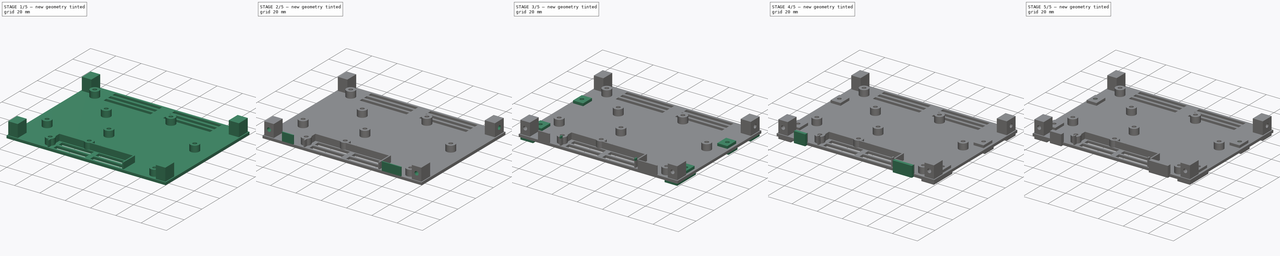
[diagram: build sequence overview — one tinted view per stage of 5, left to right]
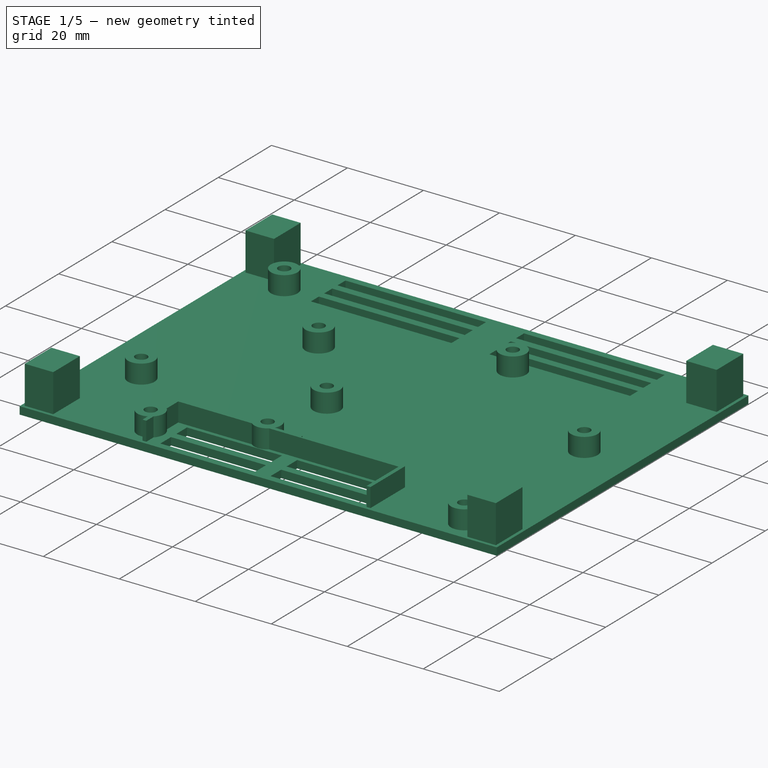
[diagram: stage 1 of 5 — iso view after this stage's code; geometry added in this stage tinted green]
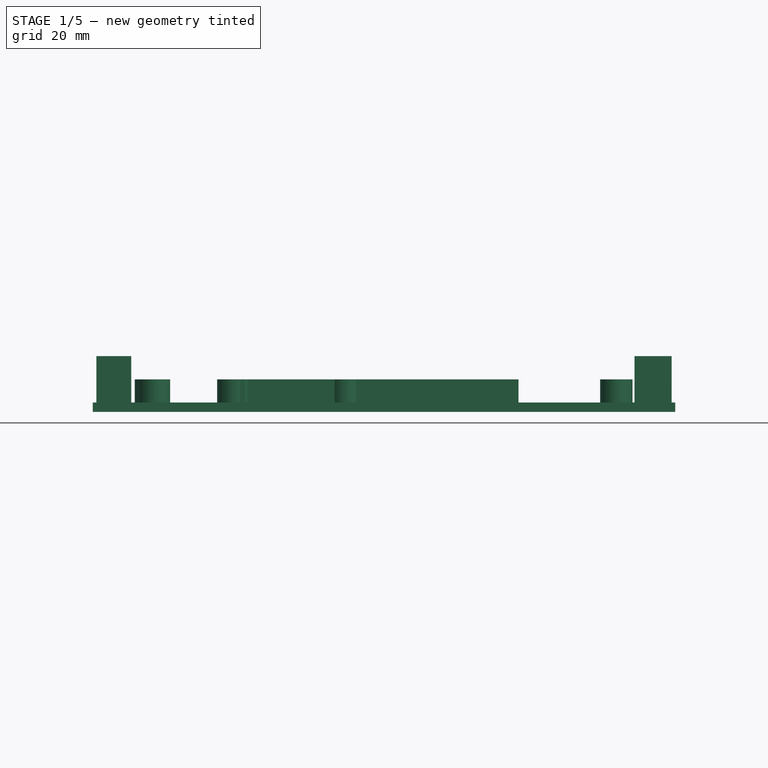
[diagram: stage 1 of 5 — front view after this stage's code; geometry added in this stage tinted green]
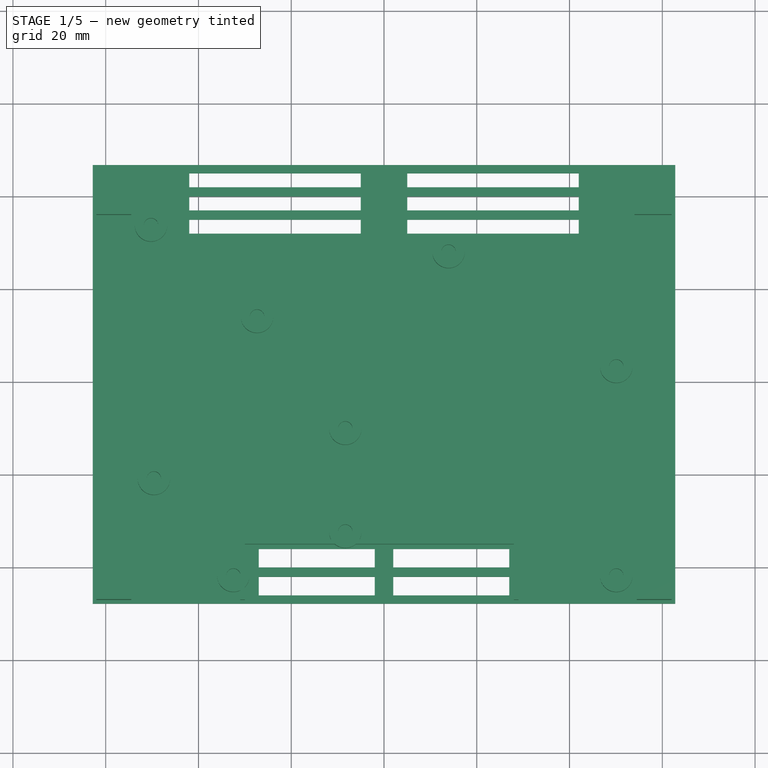
[diagram: stage 1 of 5 — top view after this stage's code; geometry added in this stage tinted green]
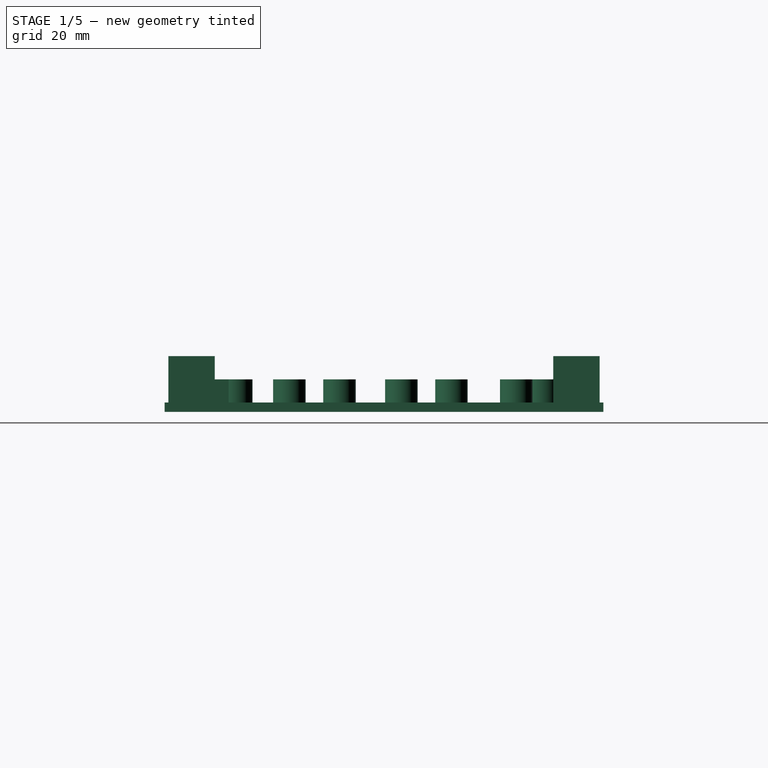
[diagram: stage 1 of 5 — right view after this stage's code; geometry added in this stage tinted green]
FCSTD DOCUMENT  (FreeCAD 0.19R24276 (Git))
Label: wall-sensor-of-room-temperature-bottom-part
License: All rights reserved
LicenseURL: http://en.wikipedia.org/wiki/All_rights_reserved
objects: Part::Feature×15, Sketcher::SketchObject×12, PartDesign::Pad×12, PartDesign::Hole×8, PartDesign::Body×1
note: 68 computed .brp shape members not serialized (recipe doc carries the construction recipe); baked Part::Feature solids carry a one-line shape summary decoded from their .brp

FEATURE [Part::Feature] Wire
  shape: bbox 2.921 x 11.81 x 2e-07 mm, 0 faces, 0 solids (baked)
FEATURE [Part::Feature] Wire001
  shape: bbox 2.9 x 28.3 x 2e-07 mm, 0 faces, 0 solids (baked)
FEATURE [Part::Feature] Wire002
  shape: bbox 107 x 90.03 x 2e-07 mm, 0 faces, 0 solids (baked)
FEATURE [Part::Feature] Wire003
  shape: bbox 30.97 x 2.9 x 2e-07 mm, 0 faces, 0 solids (baked)
FEATURE [Part::Feature] Wire004
  shape: bbox 2e-07 x 2.54 x 2e-07 mm, 0 faces, 0 solids (baked)
FEATURE [Part::Feature] Wire005 .. Wire011  x7 (patterned run collapsed; names and placements below)
  shape: bbox 2.2 x 2.2 x 2e-07 mm, 0 faces, 0 solids (baked)
FEATURE [Part::Feature] Wire012
  shape: bbox 3.81 x 2e-07 x 2e-07 mm, 0 faces, 0 solids (baked)
FEATURE [Part::Feature] Wire013
  shape: bbox 2.2 x 2.2 x 2e-07 mm, 0 faces, 0 solids (baked)
FEATURE [Part::Feature] Wire014
  shape: bbox 2.2 x 2.2 x 2e-07 mm, 0 faces, 0 solids (baked)
FEATURE [Sketcher::SketchObject] Sketch  label="vents"
  FullyConstrained = false
  MapMode = 5
  Support = -> [XY_Plane]
  sketch-geometry (44):
    g0: LineSegment StartX=-62.8 StartY=46.8 StartZ=0 EndX=62.8 EndY=46.8 EndZ=0
    g1: LineSegment StartX=62.8 StartY=46.8 StartZ=0 EndX=62.8 EndY=-47.8 EndZ=0
    g2: LineSegment StartX=-62.8 StartY=-47.8 StartZ=0 EndX=-62.8 EndY=46.8 EndZ=0
    g3: LineSegment StartX=-62.8 StartY=-47.8 StartZ=0 EndX=62.8 EndY=-47.8 EndZ=0
    g4: LineSegment StartX=-27 StartY=-36 StartZ=0 EndX=-2 EndY=-36 EndZ=0
    g5: LineSegment StartX=-2 StartY=-36 StartZ=0 EndX=-2 EndY=-40 EndZ=0
    g6: LineSegment StartX=-2 StartY=-40 StartZ=0 EndX=-27 EndY=-40 EndZ=0
    g7: LineSegment StartX=-27 StartY=-40 StartZ=0 EndX=-27 EndY=-36 EndZ=0
    g8: LineSegment StartX=-27 StartY=-42 StartZ=0 EndX=-2 EndY=-42 EndZ=0
    g9: LineSegment StartX=-2 StartY=-42 StartZ=0 EndX=-2 EndY=-46 EndZ=0
    g10: LineSegment StartX=-2 StartY=-46 StartZ=0 EndX=-27 EndY=-46 EndZ=0
    g11: LineSegment StartX=-27 StartY=-46 StartZ=0 EndX=-27 EndY=-42 EndZ=0
    g12: LineSegment StartX=2 StartY=-36 StartZ=0 EndX=27 EndY=-36 EndZ=0
    g13: LineSegment StartX=27 StartY=-36 StartZ=0 EndX=27 EndY=-40 EndZ=0
    g14: LineSegment StartX=27 StartY=-40 StartZ=0 EndX=2 EndY=-40 EndZ=0
    g15: LineSegment StartX=2 StartY=-40 StartZ=0 EndX=2 EndY=-36 EndZ=0
    g16: LineSegment StartX=2 StartY=-42 StartZ=0 EndX=27 EndY=-42 EndZ=0
    g17: LineSegment StartX=27 StartY=-42 StartZ=0 EndX=27 EndY=-46 EndZ=0
    g18: LineSegment StartX=27 StartY=-46 StartZ=0 EndX=2 EndY=-46 EndZ=0
    g19: LineSegment StartX=2 StartY=-46 StartZ=0 EndX=2 EndY=-42 EndZ=0
    g20: LineSegment StartX=-42 StartY=40 StartZ=0 EndX=-5 EndY=40 EndZ=0
    g21: LineSegment StartX=-5 StartY=40 StartZ=0 EndX=-5 EndY=37 EndZ=0
    g22: LineSegment StartX=-5 StartY=37 StartZ=0 EndX=-42 EndY=37 EndZ=0
    g23: LineSegment StartX=-42 StartY=37 StartZ=0 EndX=-42 EndY=40 EndZ=0
    g24: LineSegment StartX=-42 StartY=35 StartZ=0 EndX=-5 EndY=35 EndZ=0
    g25: LineSegment StartX=-5 StartY=35 StartZ=0 EndX=-5 EndY=32 EndZ=0
    g26: LineSegment StartX=-5 StartY=32 StartZ=0 EndX=-42 EndY=32 EndZ=0
    g27: LineSegment StartX=-42 StartY=32 StartZ=0 EndX=-42 EndY=35 EndZ=0
    g28: LineSegment StartX=5 StartY=40 StartZ=0 EndX=42 EndY=40 EndZ=0
    g29: LineSegment StartX=42 StartY=40 StartZ=0 EndX=42 EndY=37 EndZ=0
    g30: LineSegment StartX=42 StartY=37 StartZ=0 EndX=5 EndY=37 EndZ=0
    g31: LineSegment StartX=5 StartY=37 StartZ=0 EndX=5 EndY=40 EndZ=0
    g32: LineSegment StartX=5 StartY=35 StartZ=0 EndX=42 EndY=35 EndZ=0
    g33: LineSegment StartX=42 StartY=35 StartZ=0 EndX=42 EndY=32 EndZ=0
    g34: LineSegment StartX=42 StartY=32 StartZ=0 EndX=5 EndY=32 EndZ=0
    g35: LineSegment StartX=5 StartY=32 StartZ=0 EndX=5 EndY=35 EndZ=0
    g36: LineSegment StartX=-42 StartY=45 StartZ=0 EndX=-5 EndY=45 EndZ=0
    g37: LineSegment StartX=-5 StartY=45 StartZ=0 EndX=-5 EndY=42 EndZ=0
    g38: LineSegment StartX=-5 StartY=42 StartZ=0 EndX=-42 EndY=42 EndZ=0
    g39: LineSegment StartX=-42 StartY=42 StartZ=0 EndX=-42 EndY=45 EndZ=0
    g40: LineSegment StartX=5 StartY=45 StartZ=0 EndX=42 EndY=45 EndZ=0
    g41: LineSegment StartX=42 StartY=45 StartZ=0 EndX=42 EndY=42 EndZ=0
    g42: LineSegment StartX=42 StartY=42 StartZ=0 EndX=5 EndY=42 EndZ=0
    g43: LineSegment StartX=5 StartY=42 StartZ=0 EndX=5 EndY=45 EndZ=0
  constraints (92):
    c: Coincident(g0,g1)
    c: Coincident(g2,g0)
    c: Horizontal(g0)
    c: Vertical(g1)
    c: Vertical(g2)
    c: Coincident(g3,g2)
    c: Coincident(g3,g1)
    c: Horizontal(g3)
    c: DistanceX(g-1,g0) = 62.8
    c: DistanceY(g-1,g0) = 46.8
    c: Coincident(g4,g5)
    c: Coincident(g5,g6)
    c: Coincident(g7,g4)
    c: Horizontal(g4)
    c: Horizontal(g6)
    c: Vertical(g5)
    c: Vertical(g7)
    c: Coincident(g8,g9)
    c: Coincident(g9,g10)
    c: Coincident(g10,g11)
    c: Coincident(g11,g8)
    c: Horizontal(g8)
    c: Horizontal(g10)
    c: Vertical(g9)
    c: Vertical(g11)
    c: Coincident(g12,g13)
    c: Coincident(g13,g14)
    c: Coincident(g14,g15)
    c: Coincident(g15,g12)
    c: Horizontal(g12)
    c: Horizontal(g14)
    c: Vertical(g13)
    c: Vertical(g15)
    c: Coincident(g16,g17)
    c: Coincident(g17,g18)
    c: Coincident(g18,g19)
    c: Coincident(g19,g16)
    c: Horizontal(g16)
    c: Horizontal(g18)
    c: Vertical(g17)
    c: Vertical(g19)
    c: DistanceX(g0,g-1) = 62.8
    c: DistanceY(g2,g-1) = 47.8
    c: Coincident(g20,g21)
    c: Coincident(g21,g22)
    c: Coincident(g22,g23)
    c: Coincident(g23,g20)
    c: Horizontal(g20)
    c: Horizontal(g22)
    c: Vertical(g21)
    c: Vertical(g23)
    c: Coincident(g24,g25)
    c: Coincident(g25,g26)
    c: Coincident(g26,g27)
    c: Coincident(g27,g24)
    c: Horizontal(g24)
    c: Horizontal(g26)
    c: Vertical(g25)
    c: Vertical(g27)
    c: Coincident(g28,g29)
    c: Coincident(g29,g30)
    c: Coincident(g30,g31)
    c: Coincident(g31,g28)
    c: Horizontal(g28)
    c: Horizontal(g30)
    c: Vertical(g29)
    c: Vertical(g31)
    c: Coincident(g32,g33)
    c: Coincident(g33,g34)
    c: Coincident(g34,g35)
    c: Coincident(g35,g32)
    c: Horizontal(g32)
    c: Horizontal(g34)
    c: Vertical(g33)
    c: Vertical(g35)
    c: Coincident(g36,g37)
    c: Coincident(g37,g38)
    c: Coincident(g38,g39)
    c: Coincident(g39,g36)
    c: Horizontal(g36)
    c: Horizontal(g38)
    c: Vertical(g37)
    c: Vertical(g39)
    c: Coincident(g40,g41)
    c: Coincident(g41,g42)
    c: Coincident(g42,g43)
    c: Coincident(g43,g40)
    c: Horizontal(g40)
    c: Horizontal(g42)
    c: Vertical(g41)
    c: Vertical(g43)
    c: DistanceX(g4,g12) = 4
FEATURE [PartDesign::Pad] Pad
  Direction = (1,1,1)
  Length = 2
  Length2 = 0
  Offset = 18
  Profile = -> Sketch
  Reversed = true
  Type = 0
FEATURE [Sketcher::SketchObject] Sketch002  label="distance_columns"
  FullyConstrained = false
  MapMode = 5
  Support = -> [XY_Plane]
  sketch-geometry (26):
    g0: Circle CenterX=-49.6094 CenterY=-20.8974 CenterZ=0 NormalX=0 NormalY=0 NormalZ=1 AngleXU=0 Radius=1.55
    g1: Circle CenterX=-49.6094 CenterY=-20.8974 CenterZ=0 NormalX=0 NormalY=0 NormalZ=1 AngleXU=0 Radius=3.5
    g2: Circle CenterX=-8.34078 CenterY=-10.0935 CenterZ=0 NormalX=0 NormalY=0 NormalZ=1 AngleXU=0 Radius=1.55
    g3: Circle CenterX=-8.34078 CenterY=-10.0935 CenterZ=0 NormalX=0 NormalY=0 NormalZ=1 AngleXU=0 Radius=3.5
    g4: Circle CenterX=-27.3676 CenterY=14.0367 CenterZ=0 NormalX=0 NormalY=0 NormalZ=1 AngleXU=0 Radius=1.55
    g5: Circle CenterX=-27.3676 CenterY=14.0367 CenterZ=0 NormalX=0 NormalY=0 NormalZ=1 AngleXU=0 Radius=3.5
    g6: Circle CenterX=-50.2294 CenterY=33.738 CenterZ=0 NormalX=0 NormalY=0 NormalZ=1 AngleXU=0 Radius=1.55
    g7: Circle CenterX=-50.2294 CenterY=33.738 CenterZ=0 NormalX=0 NormalY=0 NormalZ=1 AngleXU=0 Radius=3.5
    g8: Circle CenterX=13.9237 CenterY=28.0157 CenterZ=0 NormalX=0 NormalY=0 NormalZ=1 AngleXU=0 Radius=1.55
    g9: Circle CenterX=13.9237 CenterY=28.0157 CenterZ=0 NormalX=0 NormalY=0 NormalZ=1 AngleXU=0 Radius=3.5
    g10: Circle CenterX=50.086 CenterY=-41.8361 CenterZ=0 NormalX=0 NormalY=0 NormalZ=1 AngleXU=0 Radius=1.55
    g11: Circle CenterX=50.086 CenterY=-41.8361 CenterZ=0 NormalX=0 NormalY=0 NormalZ=1 AngleXU=0 Radius=3.5
    g12: Circle CenterX=50.0899 CenterY=3.25085 CenterZ=0 NormalX=0 NormalY=0 NormalZ=1 AngleXU=0 Radius=1.55
    g13: Circle CenterX=50.0899 CenterY=3.25085 CenterZ=0 NormalX=0 NormalY=0 NormalZ=1 AngleXU=0 Radius=3.5
    g14: LineSegment StartX=-31 StartY=-47 StartZ=0 EndX=-31 EndY=-34 EndZ=0
    g15: LineSegment StartX=-31 StartY=-34 StartZ=0 EndX=2 EndY=-34 EndZ=0
    g16: LineSegment StartX=29 StartY=-34 StartZ=0 EndX=29 EndY=-47 EndZ=0
    g17: LineSegment StartX=29 StartY=-47 StartZ=0 EndX=28 EndY=-47 EndZ=0
    g18: LineSegment StartX=28 StartY=-47 StartZ=0 EndX=28 EndY=-35 EndZ=0
    g19: LineSegment StartX=28 StartY=-35 StartZ=0 EndX=-30 EndY=-35 EndZ=0
    g20: LineSegment StartX=-31 StartY=-47 StartZ=0 EndX=-30 EndY=-47 EndZ=0
    g21: LineSegment StartX=-30 StartY=-47 StartZ=0 EndX=-30 EndY=-35 EndZ=0
    g22: LineSegment StartX=2 StartY=-34 StartZ=0 EndX=2 EndY=-34.5 EndZ=0
    g23: LineSegment StartX=2 StartY=-34.5 StartZ=0 EndX=10 EndY=-34.5 EndZ=0
    g24: LineSegment StartX=10 StartY=-34 StartZ=0 EndX=10 EndY=-34.5 EndZ=0
    g25: LineSegment StartX=10 StartY=-34 StartZ=0 EndX=29 EndY=-34 EndZ=0
  constraints (45):
    c: Coincident(g1,g0)
    c: Coincident(g3,g2)
    c: Coincident(g5,g4)
    c: Coincident(g7,g6)
    c: Coincident(g9,g8)
    c: Coincident(g11,g10)
    c: Coincident(g13,g12)
    c: Vertical(g14)
    c: Coincident(g15,g14)
    c: Horizontal(g15)
    c: Vertical(g16)
    c: Coincident(g17,g16)
    c: Horizontal(g17)
    c: Coincident(g18,g17)
    c: Vertical(g18)
    c: Coincident(g19,g18)
    c: Horizontal(g19)
    c: Coincident(g20,g14)
    c: Horizontal(g20)
    c: Coincident(g21,g20)
    c: Coincident(g21,g19)
    c: Vertical(g21)
    c: Coincident(g22,g15)
    c: Vertical(g22)
    c: Coincident(g23,g22)
    c: Horizontal(g23)
    c: Coincident(g24,g23)
    c: Vertical(g24)
    c: Coincident(g25,g24)
    c: Coincident(g25,g16)
    c: Horizontal(g25)
    c: Diameter(g4) = 3.1
    c: Diameter(g5) = 7
    c: Diameter(g6) = 3.1
    c: Diameter(g7) = 7
    c: Diameter(g8) = 3.1
    c: Diameter(g9) = 7
    c: Diameter(g12) = 3.1
    c: Diameter(g13) = 7
    c: Diameter(g0) = 3.1
    c: Diameter(g1) = 7
    c: Diameter(g10) = 3.1
    c: Diameter(g11) = 7
    c: Diameter(g2) = 3.1
    c: Diameter(g3) = 7
FEATURE [Sketcher::SketchObject] Sketch003  label="mouting_upper_part"
  FullyConstrained = false
  MapMode = 5
  Support = -> [XY_Plane]
  sketch-geometry (16):
    g0: LineSegment StartX=-62 StartY=46 StartZ=0 EndX=-62 EndY=36 EndZ=0
    g1: LineSegment StartX=-62 StartY=36 StartZ=0 EndX=-54.5 EndY=36 EndZ=0
    g2: LineSegment StartX=-54.5 StartY=36 StartZ=0 EndX=-54.5 EndY=46 EndZ=0
    g3: LineSegment StartX=-62 StartY=-47 StartZ=0 EndX=-62 EndY=-37 EndZ=0
    g4: LineSegment StartX=-62 StartY=-37 StartZ=0 EndX=-54.5 EndY=-37 EndZ=0
    g5: LineSegment StartX=-62 StartY=-47 StartZ=0 EndX=-54.5 EndY=-47 EndZ=0
    g6: LineSegment StartX=62 StartY=46 StartZ=0 EndX=62 EndY=36 EndZ=0
    g7: LineSegment StartX=62 StartY=46 StartZ=0 EndX=54 EndY=46 EndZ=0
    g8: LineSegment StartX=62 StartY=-47 StartZ=0 EndX=54.5 EndY=-47 EndZ=0
    g9: LineSegment StartX=54.5 StartY=-37 StartZ=0 EndX=62 EndY=-37 EndZ=0
    g10: LineSegment StartX=62 StartY=-37 StartZ=0 EndX=62 EndY=-47 EndZ=0
    g11: LineSegment StartX=54.5 StartY=-37 StartZ=0 EndX=54.5 EndY=-47 EndZ=0
    g12: LineSegment StartX=54 StartY=46 StartZ=0 EndX=54 EndY=36 EndZ=0
    g13: LineSegment StartX=54 StartY=36 StartZ=0 EndX=62 EndY=36 EndZ=0
    g14: LineSegment StartX=-54.5 StartY=-37 StartZ=0 EndX=-54.5 EndY=-47 EndZ=0
    g15: LineSegment StartX=-54.5 StartY=46 StartZ=0 EndX=-62 EndY=46 EndZ=0
  constraints (24):
    c: Vertical(g0)
    c: Coincident(g1,g0)
    c: Horizontal(g1)
    c: Coincident(g2,g1)
    c: Vertical(g2)
    c: Vertical(g3)
    c: Coincident(g4,g3)
    c: Horizontal(g4)
    c: Coincident(g5,g3)
    c: Horizontal(g5)
    c: Vertical(g6)
    c: Coincident(g7,g6)
    c: Horizontal(g7)
    c: Horizontal(g8)
    c: Horizontal(g9)
    c: Vertical(g10)
    c: Coincident(g11,g9)
    c: Vertical(g11)
    c: Vertical(g12)
    c: Coincident(g13,g12)
    c: Coincident(g14,g4)
    c: Vertical(g14)
    c: Coincident(g15,g2)
    c: Horizontal(g15)
FEATURE [PartDesign::Pad] Pad003
  BaseFeature = -> Pad
  Direction = (1,1,1)
  Length = 5
  Length2 = 100
  Profile = -> Sketch002
  Type = 0
FEATURE [Sketcher::SketchObject] Sketch004  label="distance_columns_temp_sensor"
  FullyConstrained = false
  MapMode = 5
  Support = -> [XY_Plane]
  sketch-geometry (4):
    g0: Circle CenterX=-32.4748 CenterY=-41.8224 CenterZ=0 NormalX=0 NormalY=0 NormalZ=1 AngleXU=0 Radius=1.55
    g1: Circle CenterX=-32.4748 CenterY=-41.8224 CenterZ=0 NormalX=0 NormalY=0 NormalZ=1 AngleXU=0 Radius=3.5
    g2: Circle CenterX=-8.33691 CenterY=-32.3371 CenterZ=0 NormalX=0 NormalY=0 NormalZ=1 AngleXU=0 Radius=1.55
    g3: Circle CenterX=-8.33691 CenterY=-32.3371 CenterZ=0 NormalX=0 NormalY=0 NormalZ=1 AngleXU=0 Radius=3.5
  constraints (6):
    c: Diameter(g0) = 3.1
    c: Coincident(g1,g0)
    c: Diameter(g1) = 7
    c: Diameter(g2) = 3.1
    c: Coincident(g3,g2)
    c: Diameter(g3) = 7
FEATURE [PartDesign::Pad] Pad004
  BaseFeature = -> Pad003
  Direction = (1,1,1)
  Length = 5
  Length2 = 100
  Profile = -> Sketch004
  Type = 0
FEATURE [Sketcher::SketchObject] Sketch010  label="mounting_holes"
  FullyConstrained = false
  MapMode = 5
  Support = -> [XY_Plane]
  sketch-geometry (20):
    g0: LineSegment StartX=-61 StartY=21 StartZ=0 EndX=-53 EndY=21 EndZ=0
    g1: LineSegment StartX=-53 StartY=21 StartZ=0 EndX=-53 EndY=11 EndZ=0
    g2: LineSegment StartX=-53 StartY=11 StartZ=0 EndX=-61 EndY=11 EndZ=0
    g3: LineSegment StartX=-61 StartY=11 StartZ=0 EndX=-61 EndY=21 EndZ=0
    g4: LineSegment StartX=53 StartY=21 StartZ=0 EndX=61 EndY=21 EndZ=0
    g5: LineSegment StartX=61 StartY=21 StartZ=0 EndX=61 EndY=11 EndZ=0
    g6: LineSegment StartX=61 StartY=11 StartZ=0 EndX=53 EndY=11 EndZ=0
    g7: LineSegment StartX=53 StartY=11 StartZ=0 EndX=53 EndY=21 EndZ=0
    g8: Circle CenterX=-57.5 CenterY=16 CenterZ=0 NormalX=0 NormalY=0 NormalZ=1 AngleXU=0 Radius=1.5
    g9: Circle CenterX=57.5 CenterY=16 CenterZ=0 NormalX=0 NormalY=0 NormalZ=1 AngleXU=0 Radius=1.5
    g10: LineSegment StartX=-61 StartY=-26 StartZ=0 EndX=-53 EndY=-26 EndZ=0
    g11: LineSegment StartX=-53 StartY=-26 StartZ=0 EndX=-53 EndY=-36 EndZ=0
    g12: LineSegment StartX=-53 StartY=-36 StartZ=0 EndX=-61 EndY=-36 EndZ=0
    g13: LineSegment StartX=-61 StartY=-36 StartZ=0 EndX=-61 EndY=-26 EndZ=0
    g14: LineSegment StartX=53 StartY=-26 StartZ=0 EndX=61 EndY=-26 EndZ=0
    g15: LineSegment StartX=61 StartY=-26 StartZ=0 EndX=61 EndY=-36 EndZ=0
    g16: LineSegment StartX=61 StartY=-36 StartZ=0 EndX=53 EndY=-36 EndZ=0
    g17: LineSegment StartX=53 StartY=-36 StartZ=0 EndX=53 EndY=-26 EndZ=0
    g18: Circle CenterX=-57.5 CenterY=-31 CenterZ=0 NormalX=0 NormalY=0 NormalZ=1 AngleXU=0 Radius=1.55
    g19: Circle CenterX=57.5 CenterY=-31 CenterZ=0 NormalX=0 NormalY=0 NormalZ=1 AngleXU=0 Radius=1.55
  constraints (36):
    c: Coincident(g0,g1)
    c: Coincident(g1,g2)
    c: Coincident(g2,g3)
    c: Coincident(g3,g0)
    c: Horizontal(g0)
    c: Horizontal(g2)
    c: Vertical(g1)
    c: Vertical(g3)
    c: Coincident(g4,g5)
    c: Coincident(g5,g6)
    c: Coincident(g6,g7)
    c: Coincident(g7,g4)
    c: Horizontal(g4)
    c: Horizontal(g6)
    c: Vertical(g5)
    c: Vertical(g7)
    c: Diameter(g8) = 3
    c: Diameter(g9) = 3
    c: Coincident(g10,g11)
    c: Coincident(g11,g12)
    c: Coincident(g12,g13)
    c: Coincident(g13,g10)
    c: Horizontal(g10)
    c: Horizontal(g12)
    c: Vertical(g11)
    c: Vertical(g13)
    c: Coincident(g14,g15)
    c: Coincident(g15,g16)
    c: Coincident(g16,g17)
    c: Coincident(g17,g14)
    c: Horizontal(g14)
    c: Horizontal(g16)
    c: Vertical(g15)
    c: Vertical(g17)
    c: Diameter(g18) = 3.1
    c: Diameter(g19) = 3.1
FEATURE [Sketcher::SketchObject] Sketch011  label="distance_pads"
  FullyConstrained = false
  MapMode = 5
  Placement = pos=(0,0,-2) rot=(1,0,0;3.14159rad)
  sketch-geometry (46):
    g0: LineSegment StartX=-62 StartY=47 StartZ=0 EndX=-52 EndY=47 EndZ=0
    g1: LineSegment StartX=-52 StartY=47 StartZ=0 EndX=-52 EndY=37 EndZ=0
    g2: LineSegment StartX=-62 StartY=37 StartZ=0 EndX=-62 EndY=47 EndZ=0
    g3: LineSegment StartX=62 StartY=47 StartZ=0 EndX=52 EndY=47 EndZ=0
    g4: LineSegment StartX=52 StartY=47 StartZ=0 EndX=52 EndY=37 EndZ=0
    g5: LineSegment StartX=62 StartY=37 StartZ=0 EndX=62 EndY=47 EndZ=0
    g6: LineSegment StartX=62 StartY=-46 StartZ=0 EndX=52 EndY=-46 EndZ=0
    g7: LineSegment StartX=52 StartY=-46 StartZ=0 EndX=52 EndY=-36 EndZ=0
    g8: LineSegment StartX=52 StartY=-36 StartZ=0 EndX=62 EndY=-36 EndZ=0
    g9: LineSegment StartX=62 StartY=-36 StartZ=0 EndX=62 EndY=-46 EndZ=0
    g10: LineSegment StartX=-62 StartY=-46 StartZ=0 EndX=-52 EndY=-46 EndZ=0
    g11: LineSegment StartX=-52 StartY=-46 StartZ=0 EndX=-52 EndY=-36 EndZ=0
    g12: LineSegment StartX=-52 StartY=-36 StartZ=0 EndX=-62 EndY=-36 EndZ=0
    g13: LineSegment StartX=-62 StartY=-36 StartZ=0 EndX=-62 EndY=-46 EndZ=0
    g14: LineSegment StartX=-62 StartY=-11 StartZ=0 EndX=-32 EndY=-11 EndZ=0
    g15: LineSegment StartX=-32 StartY=-11 StartZ=0 EndX=-32 EndY=-21 EndZ=0
    g16: LineSegment StartX=-32 StartY=-21 StartZ=0 EndX=-62 EndY=-21 EndZ=0
    g17: LineSegment StartX=-62 StartY=-21 StartZ=0 EndX=-62 EndY=-11 EndZ=0
    g18: LineSegment StartX=32 StartY=-11 StartZ=0 EndX=62 EndY=-11 EndZ=0
    g19: LineSegment StartX=62 StartY=-11 StartZ=0 EndX=62 EndY=-21 EndZ=0
    g20: LineSegment StartX=62 StartY=-21 StartZ=0 EndX=32 EndY=-21 EndZ=0
    g21: LineSegment StartX=32 StartY=-21 StartZ=0 EndX=32 EndY=-11 EndZ=0
    g22: LineSegment StartX=-10 StartY=26 StartZ=0 EndX=10 EndY=26 EndZ=0
    g23: LineSegment StartX=10 StartY=26 StartZ=0 EndX=10 EndY=-11 EndZ=0
    g24: LineSegment StartX=10 StartY=-11 StartZ=0 EndX=-10 EndY=-11 EndZ=0
    g25: LineSegment StartX=-10 StartY=-11 StartZ=0 EndX=-10 EndY=26 EndZ=0
    g26: LineSegment StartX=-37 StartY=36 StartZ=0 EndX=-37 EndY=26 EndZ=0
    g27: LineSegment StartX=-37 StartY=26 StartZ=0 EndX=-62 EndY=26 EndZ=0
    g28: LineSegment StartX=-62 StartY=26 StartZ=0 EndX=-62 EndY=36 EndZ=0
    g29: LineSegment StartX=62 StartY=36 StartZ=0 EndX=62 EndY=26 EndZ=0
    g30: LineSegment StartX=62 StartY=26 StartZ=0 EndX=37 EndY=26 EndZ=0
    g31: LineSegment StartX=37 StartY=26 StartZ=0 EndX=37 EndY=36 EndZ=0
    g32: LineSegment StartX=-37 StartY=36 StartZ=0 EndX=-52 EndY=36 EndZ=0
    g33: LineSegment StartX=-52 StartY=37 StartZ=0 EndX=-52 EndY=36 EndZ=0
    g34: LineSegment StartX=-62 StartY=37 StartZ=0 EndX=-62 EndY=36 EndZ=0
    g35: LineSegment StartX=37 StartY=36 StartZ=0 EndX=52 EndY=36 EndZ=0
    g36: LineSegment StartX=52 StartY=37 StartZ=0 EndX=52 EndY=36 EndZ=0
    g37: LineSegment StartX=62 StartY=37 StartZ=0 EndX=62 EndY=36 EndZ=0
    g38: LineSegment StartX=-47 StartY=12 StartZ=0 EndX=-37 EndY=12 EndZ=0
    g39: LineSegment StartX=-37 StartY=12 StartZ=0 EndX=-37 EndY=2 EndZ=0
    g40: LineSegment StartX=-37 StartY=2 StartZ=0 EndX=-47 EndY=2 EndZ=0
    g41: LineSegment StartX=-47 StartY=2 StartZ=0 EndX=-47 EndY=12 EndZ=0
    g42: LineSegment StartX=37 StartY=12 StartZ=0 EndX=47 EndY=12 EndZ=0
    g43: LineSegment StartX=47 StartY=12 StartZ=0 EndX=47 EndY=2 EndZ=0
    g44: LineSegment StartX=47 StartY=2 StartZ=0 EndX=37 EndY=2 EndZ=0
    g45: LineSegment StartX=37 StartY=2 StartZ=0 EndX=37 EndY=12 EndZ=0
  constraints (96):
    c: Coincident(g0,g1)
    c: Coincident(g2,g0)
    c: Horizontal(g0)
    c: Vertical(g1)
    c: Vertical(g2)
    c: Coincident(g3,g4)
    c: Coincident(g5,g3)
    c: Horizontal(g3)
    c: Vertical(g4)
    c: Vertical(g5)
    c: Coincident(g6,g7)
    c: Coincident(g7,g8)
    c: Coincident(g8,g9)
    c: Coincident(g9,g6)
    c: Horizontal(g6)
    c: Horizontal(g8)
    c: Vertical(g7)
    c: Vertical(g9)
    c: Coincident(g10,g11)
    c: Coincident(g11,g12)
    c: Coincident(g12,g13)
    c: Coincident(g13,g10)
    c: Horizontal(g10)
    c: Horizontal(g12)
    c: Vertical(g11)
    c: Vertical(g13)
    c: Coincident(g14,g15)
    c: Coincident(g15,g16)
    c: Coincident(g16,g17)
    c: Coincident(g17,g14)
    c: Horizontal(g14)
    c: Horizontal(g16)
    c: Vertical(g15)
    c: Vertical(g17)
    c: Coincident(g18,g19)
    c: Coincident(g19,g20)
    c: Coincident(g20,g21)
    c: Coincident(g21,g18)
    c: Horizontal(g18)
    c: Horizontal(g20)
    c: Vertical(g19)
    c: Vertical(g21)
    c: Coincident(g22,g23)
    c: Coincident(g23,g24)
    c: Coincident(g24,g25)
    c: Coincident(g25,g22)
    c: Horizontal(g22)
    c: Horizontal(g24)
    c: Vertical(g23)
    c: Vertical(g25)
    c: Coincident(g26,g27)
    c: Coincident(g27,g28)
    c: Horizontal(g27)
    c: Vertical(g26)
    c: Vertical(g28)
    c: Coincident(g29,g30)
    c: Coincident(g30,g31)
    c: Horizontal(g30)
    c: Vertical(g29)
    c: Vertical(g31)
    c: Coincident(g32,g26)
    c: Horizontal(g32)
    c: Coincident(g33,g1)
    c: Coincident(g33,g32)
    c: Vertical(g33)
    c: Coincident(g34,g2)
    c: Coincident(g34,g28)
    c: Vertical(g34)
    c: Coincident(g35,g31)
    c: Horizontal(g35)
    c: Coincident(g36,g4)
    c: Coincident(g36,g35)
    c: Vertical(g36)
    c: Coincident(g37,g5)
    c: Coincident(g37,g29)
    c: Vertical(g37)
    c: Coincident(g38,g39)
    c: Coincident(g39,g40)
    c: Coincident(g40,g41)
    c: Coincident(g41,g38)
    c: Horizontal(g38)
    c: Horizontal(g40)
    c: Vertical(g39)
    c: Vertical(g41)
    c: DistanceX(g38,g38) = 10
    c: DistanceY(g39,g39) = 10
    c: Coincident(g42,g43)
    c: Coincident(g43,g44)
    c: Coincident(g44,g45)
    c: Coincident(g45,g42)
    c: Horizontal(g42)
    c: Horizontal(g44)
    c: Vertical(g43)
    c: Vertical(g45)
    c: DistanceX(g42,g42) = 10
    c: DistanceY(g43,g43) = 10
FEATURE [PartDesign::Pad] Pad010
  BaseFeature = -> Pad004
  Direction = (1,1,1)
  Length = 10
  Length2 = 100
  Profile = -> Sketch003
  Type = 0
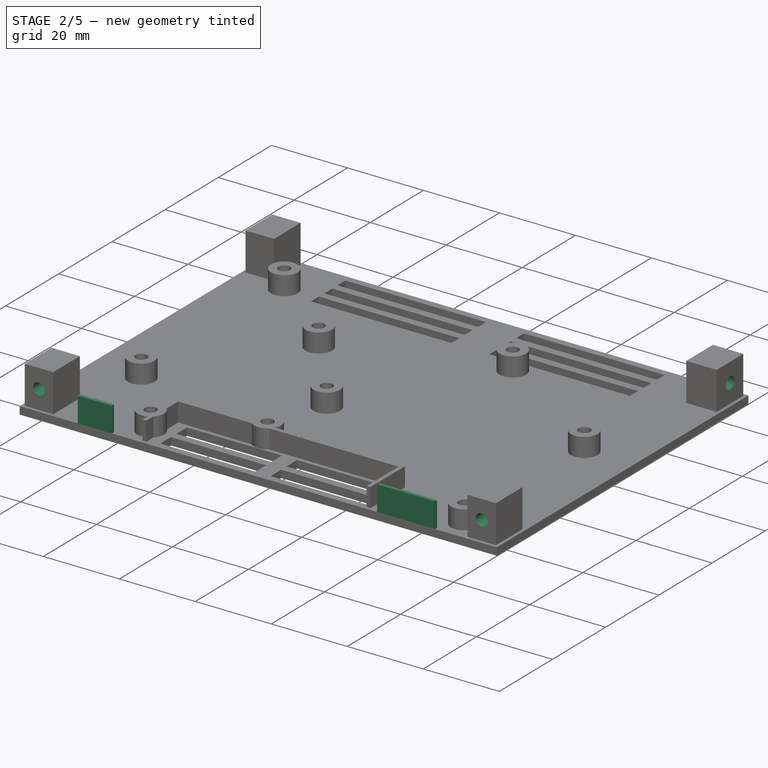
[diagram: stage 2 of 5 — iso view after this stage's code; geometry added in this stage tinted green]
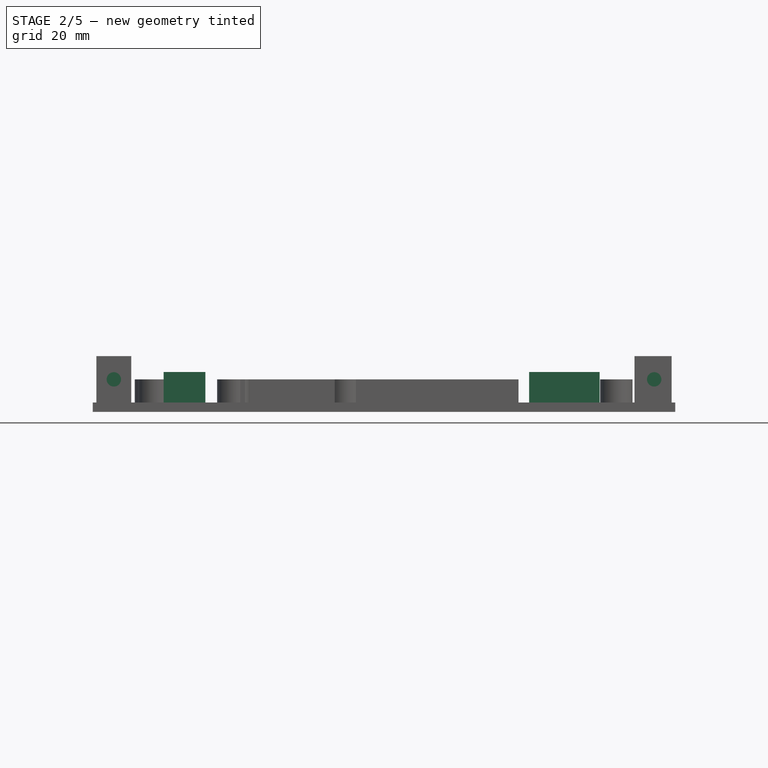
[diagram: stage 2 of 5 — front view after this stage's code; geometry added in this stage tinted green]
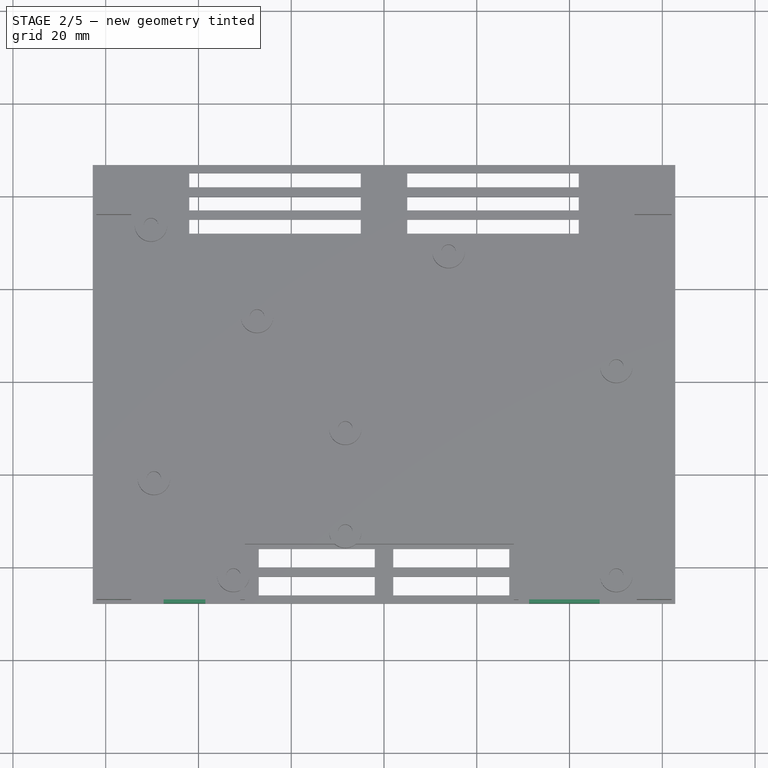
[diagram: stage 2 of 5 — top view after this stage's code; geometry added in this stage tinted green]
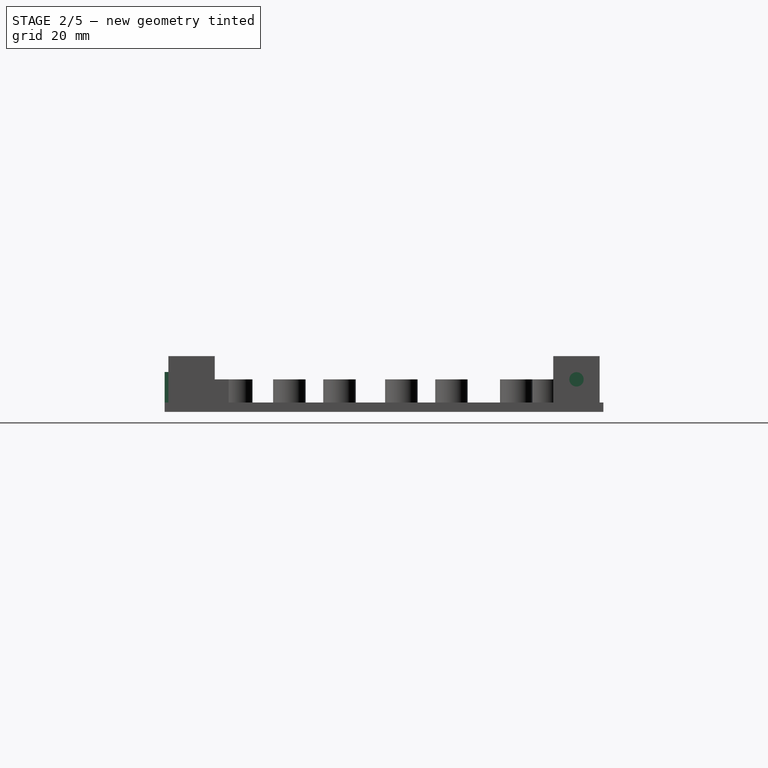
[diagram: stage 2 of 5 — right view after this stage's code; geometry added in this stage tinted green]
FEATURE [Sketcher::SketchObject] Sketch014  label="front_right"
  FullyConstrained = false
  MapMode = 5
  Placement = pos=(0,-47,0) rot=(1,0,0;1.5708rad)
  Support = -> [Pad010]
  sketch-geometry (1):
    g0: Circle CenterX=58.2514 CenterY=5 CenterZ=0 NormalX=0 NormalY=0 NormalZ=1 AngleXU=0 Radius=1.55
  constraints (1):
    c: Diameter(g0) = 3.1
FEATURE [PartDesign::Hole] Hole002
  BaseFeature = -> Pad010
  Depth = 6
  DepthType = 0
  Diameter = 3.1
  DrillForDepth = false
  DrillPoint = 0
  DrillPointAngle = 118
  HoleCutCountersinkAngle = 90
  HoleCutCustomValues = false
  HoleCutDepth = 0
  HoleCutDiameter = 6.1
  HoleCutType = 0
  ModelActualThread = false
  Profile = -> Sketch014
  Tapered = false
  TaperedAngle = 90
  ThreadAngle = 0
  ThreadClass = 0
  ThreadCutOffInner = 0
  ThreadCutOffOuter = 0
  ThreadDirection = 0
  ThreadFit = 0
  ThreadPitch = 0
  ThreadSize = 0
  ThreadType = 0
  Threaded = false
FEATURE [Sketcher::SketchObject] Sketch017  label="connectors_bottom"
  FullyConstrained = false
  MapMode = 5
  sketch-geometry (8):
    g0: LineSegment StartX=-47.5 StartY=-47.8 StartZ=0 EndX=-38.5 EndY=-47.8 EndZ=0
    g1: LineSegment StartX=-47.5 StartY=-47.8 StartZ=0 EndX=-47.5 EndY=-47 EndZ=0
    g2: LineSegment StartX=-47.5 StartY=-47 StartZ=0 EndX=-38.5 EndY=-47 EndZ=0
    g3: LineSegment StartX=-38.5 StartY=-47.8 StartZ=0 EndX=-38.5 EndY=-47 EndZ=0
    g4: LineSegment StartX=46.5 StartY=-47.8 StartZ=0 EndX=31.3 EndY=-47.8 EndZ=0
    g5: LineSegment StartX=46.5 StartY=-47.8 StartZ=0 EndX=46.5 EndY=-47 EndZ=0
    g6: LineSegment StartX=46.5 StartY=-47 StartZ=0 EndX=31.3 EndY=-47 EndZ=0
    g7: LineSegment StartX=31.3 StartY=-47.8 StartZ=0 EndX=31.3 EndY=-47 EndZ=0
  constraints (16):
    c: Horizontal(g0)
    c: Coincident(g1,g0)
    c: Vertical(g1)
    c: Coincident(g2,g1)
    c: Horizontal(g2)
    c: Coincident(g3,g0)
    c: Coincident(g3,g2)
    c: Vertical(g3)
    c: Horizontal(g4)
    c: Coincident(g5,g4)
    c: Vertical(g5)
    c: Coincident(g6,g5)
    c: Horizontal(g6)
    c: Coincident(g7,g4)
    c: Coincident(g7,g6)
    c: Vertical(g7)
FEATURE [Sketcher::SketchObject] Sketch021  label="right_right"
  FullyConstrained = false
  MapMode = 5
  Placement = pos=(62,0,0) rot=(0.57735,0.57735,0.57735;2.0944rad)
  sketch-geometry (1):
    g0: Circle CenterX=41 CenterY=5 CenterZ=0 NormalX=0 NormalY=0 NormalZ=1 AngleXU=0 Radius=1.55
  constraints (1):
    c: Diameter(g0) = 3.1
FEATURE [Sketcher::SketchObject] Sketch023
  FullyConstrained = false
  MapMode = 5
  Placement = pos=(0,0,5) rot=(0,0,1;0rad)
  sketch-geometry (8):
    g0: LineSegment StartX=-31 StartY=-45 StartZ=0 EndX=-30 EndY=-45 EndZ=0
    g1: LineSegment StartX=-30 StartY=-45 StartZ=0 EndX=-30 EndY=-47 EndZ=0
    g2: LineSegment StartX=-30 StartY=-47 StartZ=0 EndX=-31 EndY=-47 EndZ=0
    g3: LineSegment StartX=-31 StartY=-47 StartZ=0 EndX=-31 EndY=-45 EndZ=0
    g4: LineSegment StartX=28 StartY=-45 StartZ=0 EndX=29 EndY=-45 EndZ=0
    g5: LineSegment StartX=29 StartY=-45 StartZ=0 EndX=29 EndY=-47 EndZ=0
    g6: LineSegment StartX=29 StartY=-47 StartZ=0 EndX=28 EndY=-47 EndZ=0
    g7: LineSegment StartX=28 StartY=-47 StartZ=0 EndX=28 EndY=-45 EndZ=0
  constraints (16):
    c: Coincident(g0,g1)
    c: Coincident(g1,g2)
    c: Coincident(g2,g3)
    c: Coincident(g3,g0)
    c: Horizontal(g0)
    c: Horizontal(g2)
    c: Vertical(g1)
    c: Vertical(g3)
    c: Coincident(g4,g5)
    c: Coincident(g5,g6)
    c: Coincident(g6,g7)
    c: Coincident(g7,g4)
    c: Horizontal(g4)
    c: Horizontal(g6)
    c: Vertical(g5)
    c: Vertical(g7)
FEATURE [Sketcher::SketchObject] Sketch024  label="left_left"
  FullyConstrained = false
  MapMode = 5
  Placement = pos=(-62,0,0) rot=(0.57735,-0.57735,-0.57735;2.0944rad)
  sketch-geometry (1):
    g0: Circle CenterX=-41 CenterY=5 CenterZ=0 NormalX=0 NormalY=0 NormalZ=1 AngleXU=0 Radius=1.55
  constraints (1):
    c: Diameter(g0) = 3.1
FEATURE [PartDesign::Pad] Pad011
  BaseFeature = -> Hole002
  Direction = (1,1,1)
  Length = 6.6
  Length2 = 100
  Profile = -> Sketch017
  Type = 0
FEATURE [Sketcher::SketchObject] Sketch020  label="front_left"
  FullyConstrained = false
  MapMode = 5
  Placement = pos=(0,-47,0) rot=(1,0,0;1.5708rad)
  Support = -> [Pad011]
  sketch-geometry (1):
    g0: Circle CenterX=-58.2443 CenterY=5 CenterZ=0 NormalX=0 NormalY=0 NormalZ=1 AngleXU=0 Radius=1.55
  constraints (1):
    c: Diameter(g0) = 3.1
FEATURE [PartDesign::Hole] Hole
  BaseFeature = -> Pad011
  Depth = 6
  DepthType = 0
  Diameter = 3.1
  DrillForDepth = false
  DrillPoint = 0
  DrillPointAngle = 118
  HoleCutCountersinkAngle = 90
  HoleCutCustomValues = false
  HoleCutDepth = 0
  HoleCutDiameter = 6.1
  HoleCutType = 0
  ModelActualThread = false
  Profile = -> Sketch020
  Tapered = false
  TaperedAngle = 90
  ThreadAngle = 0
  ThreadClass = 0
  ThreadCutOffInner = 0
  ThreadCutOffOuter = 0
  ThreadDirection = 0
  ThreadFit = 0
  ThreadPitch = 0
  ThreadSize = 0
  ThreadType = 0
  Threaded = false
FEATURE [PartDesign::Hole] Hole003
  BaseFeature = -> Hole
  Depth = 6
  DepthType = 0
  Diameter = 3.1
  DrillForDepth = false
  DrillPoint = 0
  DrillPointAngle = 118
  HoleCutCountersinkAngle = 90
  HoleCutCustomValues = false
  HoleCutDepth = 0
  HoleCutDiameter = 6.1
  HoleCutType = 0
  ModelActualThread = false
  Profile = -> Sketch021
  Tapered = false
  TaperedAngle = 90
  ThreadAngle = 0
  ThreadClass = 0
  ThreadCutOffInner = 0
  ThreadCutOffOuter = 0
  ThreadDirection = 0
  ThreadFit = 0
  ThreadPitch = 0
  ThreadSize = 0
  ThreadType = 0
  Threaded = false
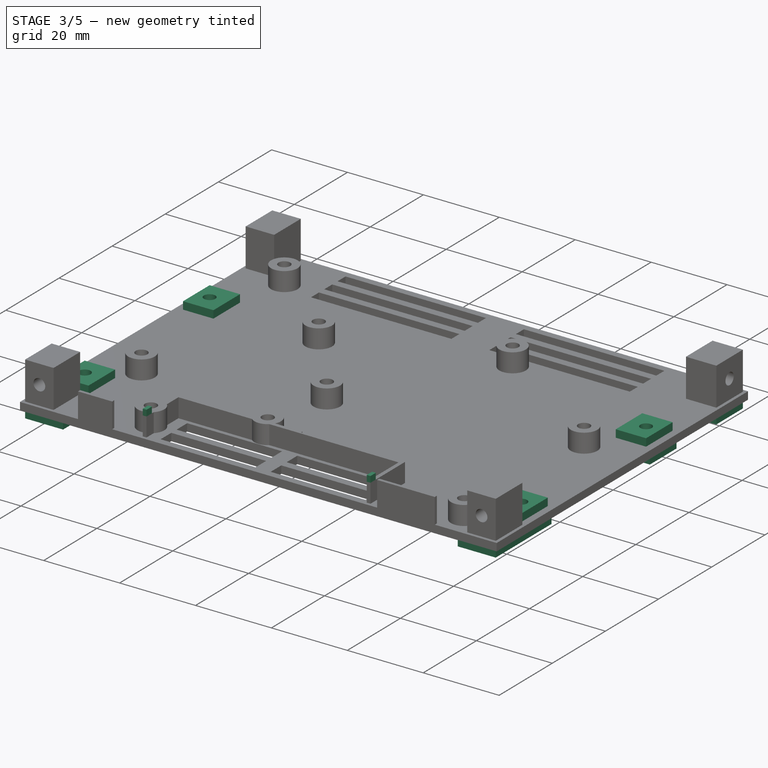
[diagram: stage 3 of 5 — iso view after this stage's code; geometry added in this stage tinted green]
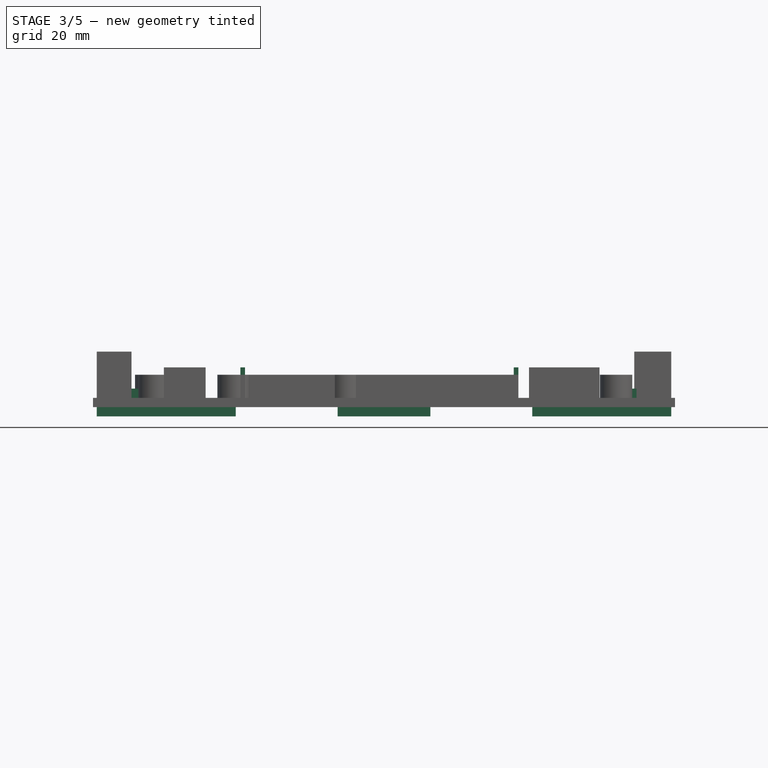
[diagram: stage 3 of 5 — front view after this stage's code; geometry added in this stage tinted green]
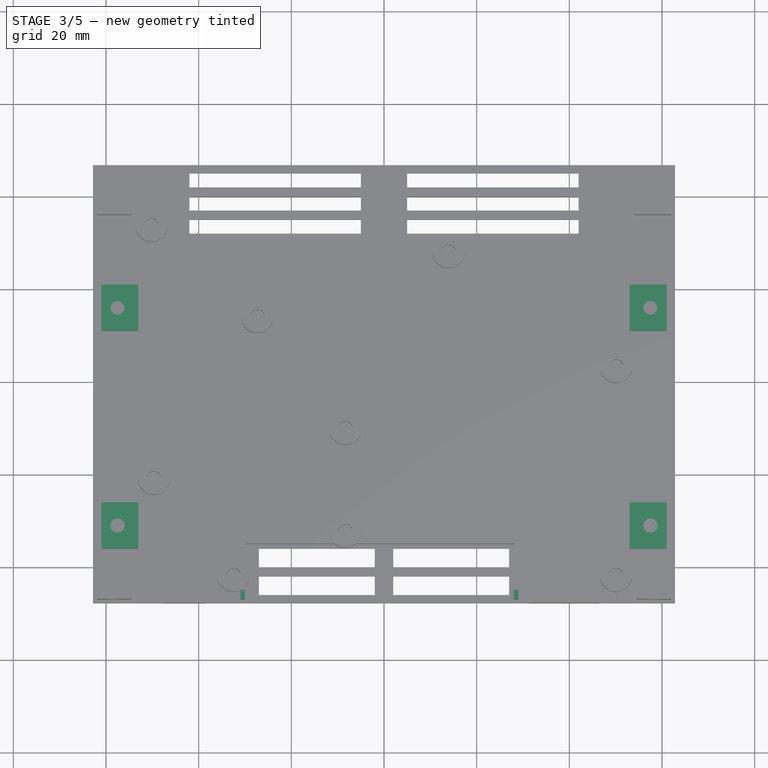
[diagram: stage 3 of 5 — top view after this stage's code; geometry added in this stage tinted green]
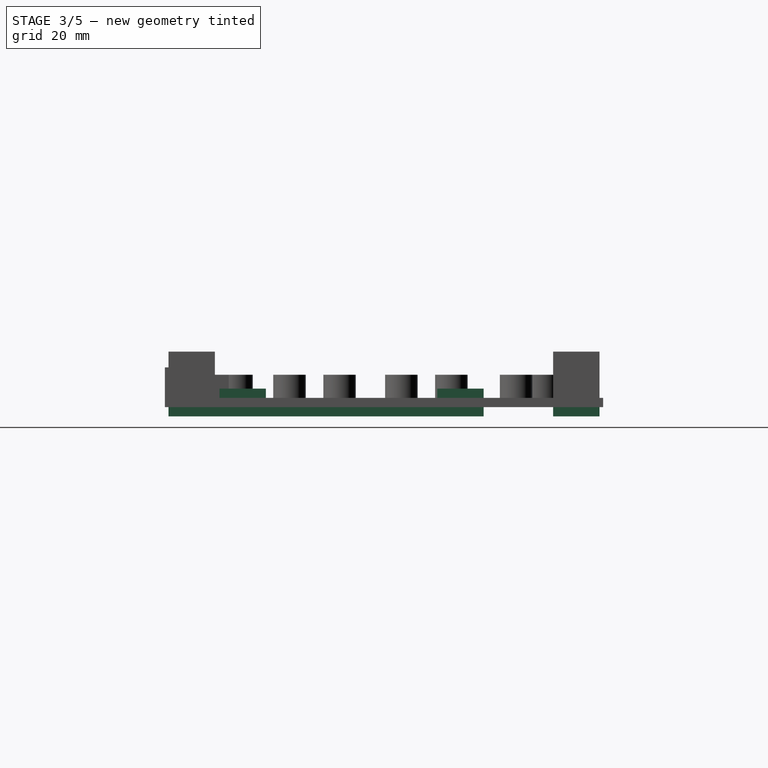
[diagram: stage 3 of 5 — right view after this stage's code; geometry added in this stage tinted green]
FEATURE [PartDesign::Hole] Hole004
  BaseFeature = -> Hole003
  Depth = 6
  DepthType = 0
  Diameter = 3.1
  DrillForDepth = false
  DrillPoint = 0
  DrillPointAngle = 118
  HoleCutCountersinkAngle = 90
  HoleCutCustomValues = false
  HoleCutDepth = 0
  HoleCutDiameter = 6.1
  HoleCutType = 0
  ModelActualThread = false
  Profile = -> Sketch024
  Tapered = false
  TaperedAngle = 90
  ThreadAngle = 0
  ThreadClass = 0
  ThreadCutOffInner = 0
  ThreadCutOffOuter = 0
  ThreadDirection = 0
  ThreadFit = 0
  ThreadPitch = 0
  ThreadSize = 0
  ThreadType = 0
  Threaded = false
FEATURE [PartDesign::Pad] Pad012
  BaseFeature = -> Hole004
  Direction = (1,1,1)
  Length = 1.6
  Length2 = 100
  Profile = -> Sketch023
  Type = 0
FEATURE [PartDesign::Pad] Pad013
  BaseFeature = -> Pad012
  Direction = (1,1,1)
  Length = 2
  Length2 = 100
  Profile = -> Sketch011
  Type = 0
FEATURE [PartDesign::Pad] Pad014
  BaseFeature = -> Pad013
  Direction = (1,1,1)
  Length = 2
  Length2 = 100
  Profile = -> Sketch010
  Type = 0
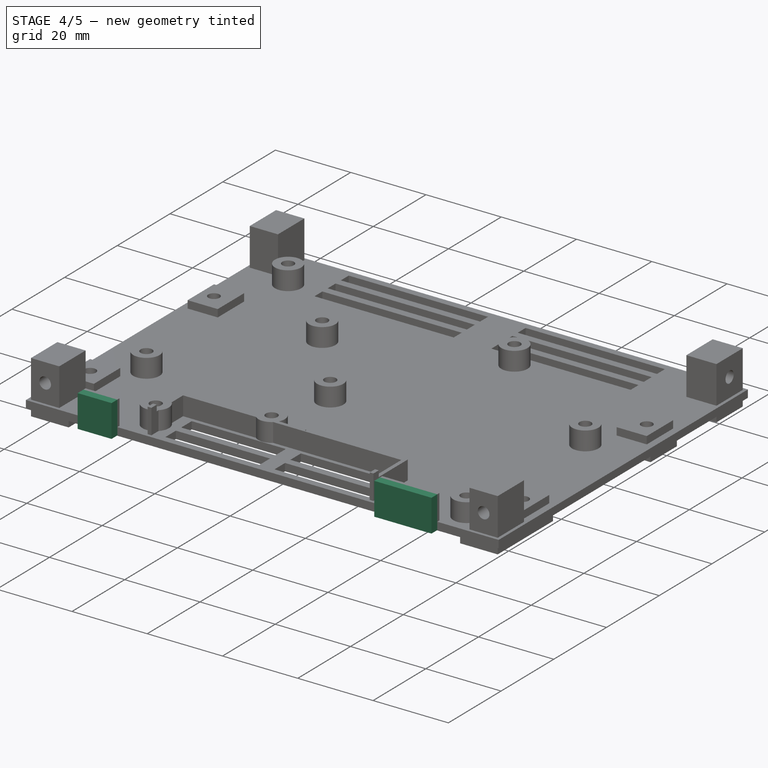
[diagram: stage 4 of 5 — iso view after this stage's code; geometry added in this stage tinted green]
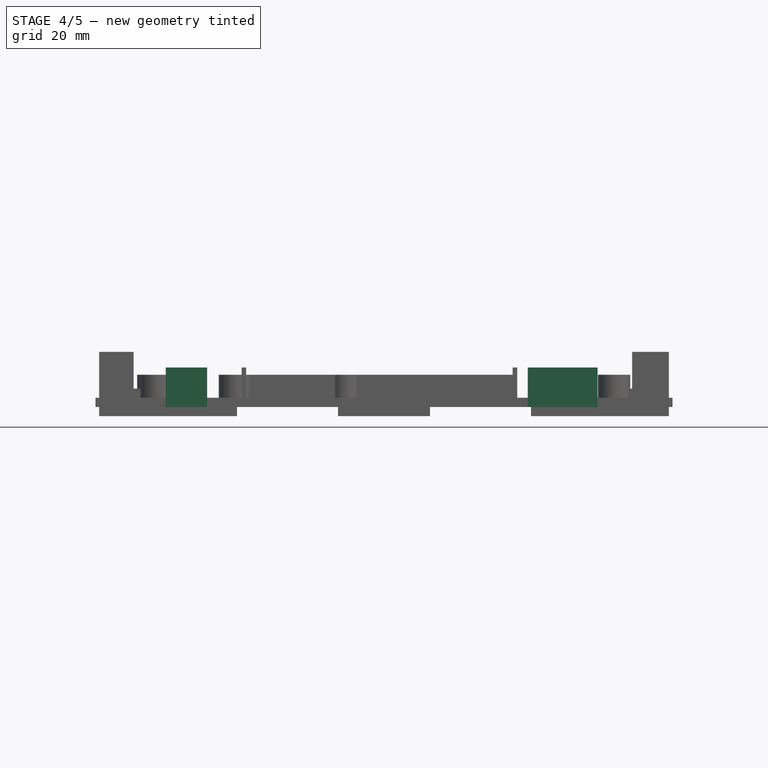
[diagram: stage 4 of 5 — front view after this stage's code; geometry added in this stage tinted green]
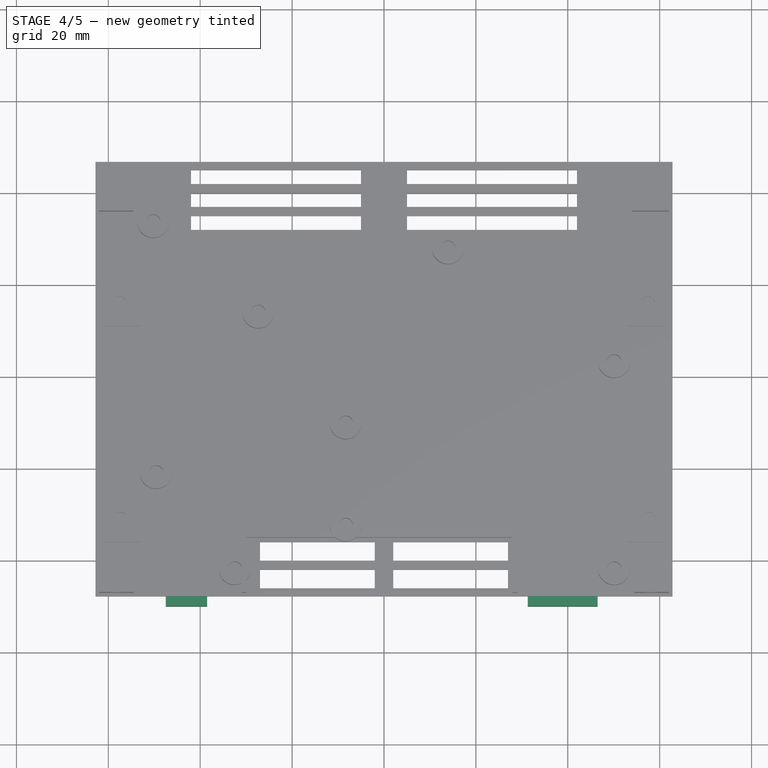
[diagram: stage 4 of 5 — top view after this stage's code; geometry added in this stage tinted green]
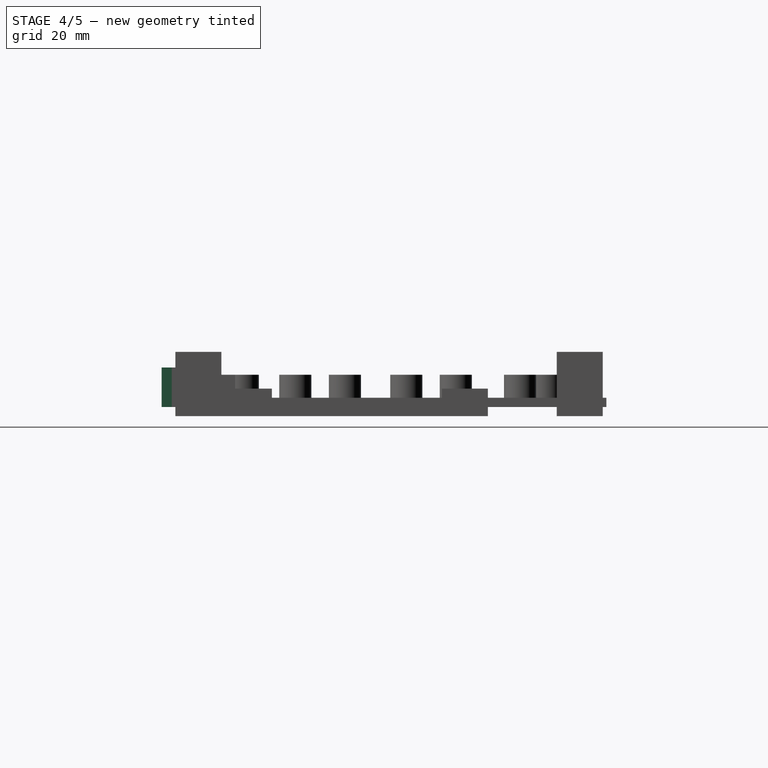
[diagram: stage 4 of 5 — right view after this stage's code; geometry added in this stage tinted green]
FEATURE [PartDesign::Pad] Pad015
  BaseFeature = -> Pad014
  Direction = (1,1,1)
  Length = 2.2
  Length2 = 100
  Profile = -> Pad014 [Face160]
  Type = 0
FEATURE [PartDesign::Pad] Pad016
  BaseFeature = -> Pad015
  Direction = (1,1,1)
  Length = 2.2
  Length2 = 100
  Profile = -> Pad015 [Face161]
  Type = 0
FEATURE [PartDesign::Pad] Pad017
  BaseFeature = -> Pad016
  Direction = (1,1,1)
  Length = 2
  Length2 = 100
  Profile = -> Pad016 [Face160]
  Type = 0
FEATURE [PartDesign::Pad] Pad018
  BaseFeature = -> Pad017
  Direction = (1,1,1)
  Length = 2
  Length2 = 100
  Profile = -> Pad017 [Face163]
  Type = 0
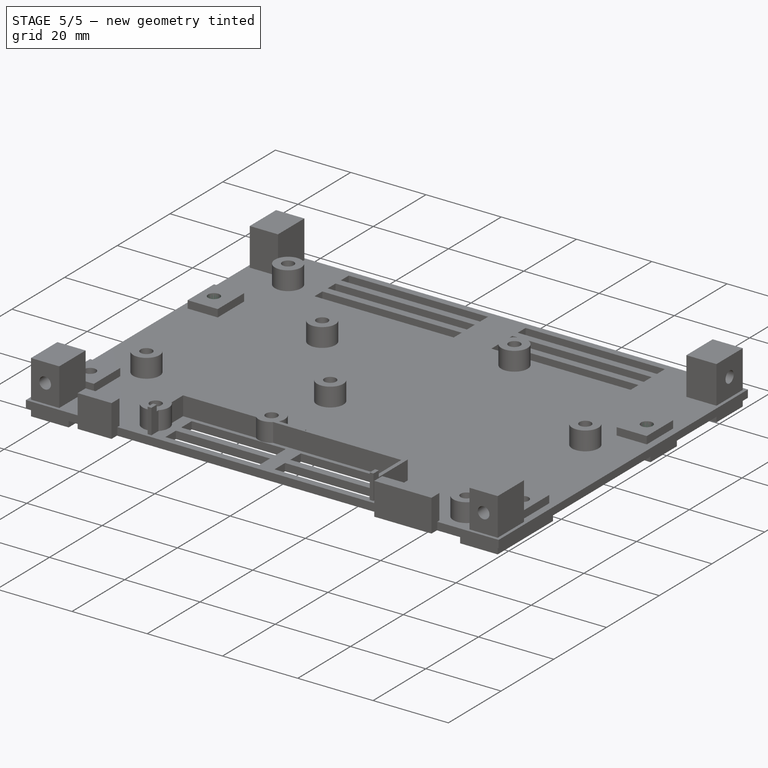
[diagram: stage 5 of 5 — iso view after this stage's code; geometry added in this stage tinted green]
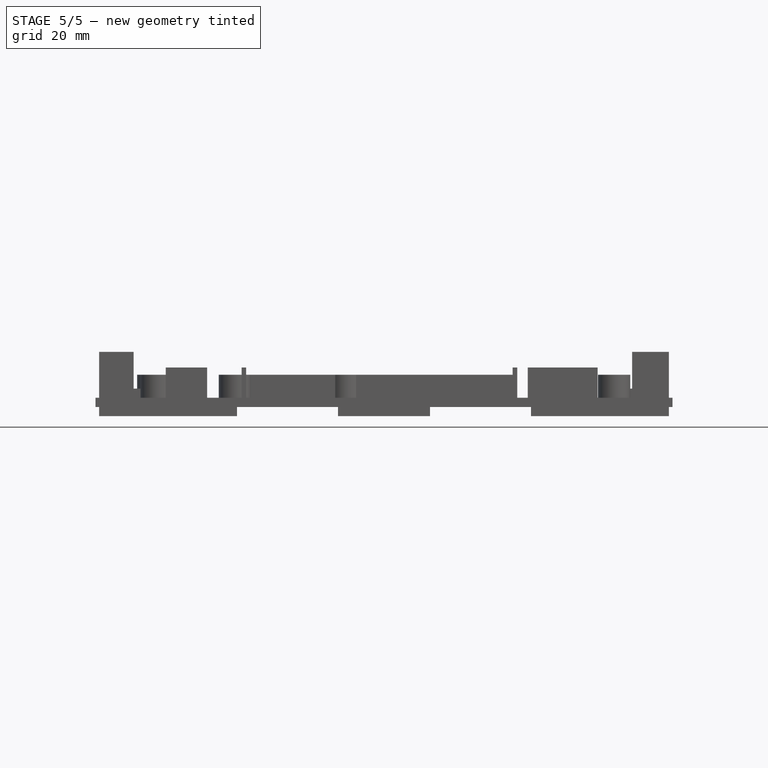
[diagram: stage 5 of 5 — front view after this stage's code; geometry added in this stage tinted green]
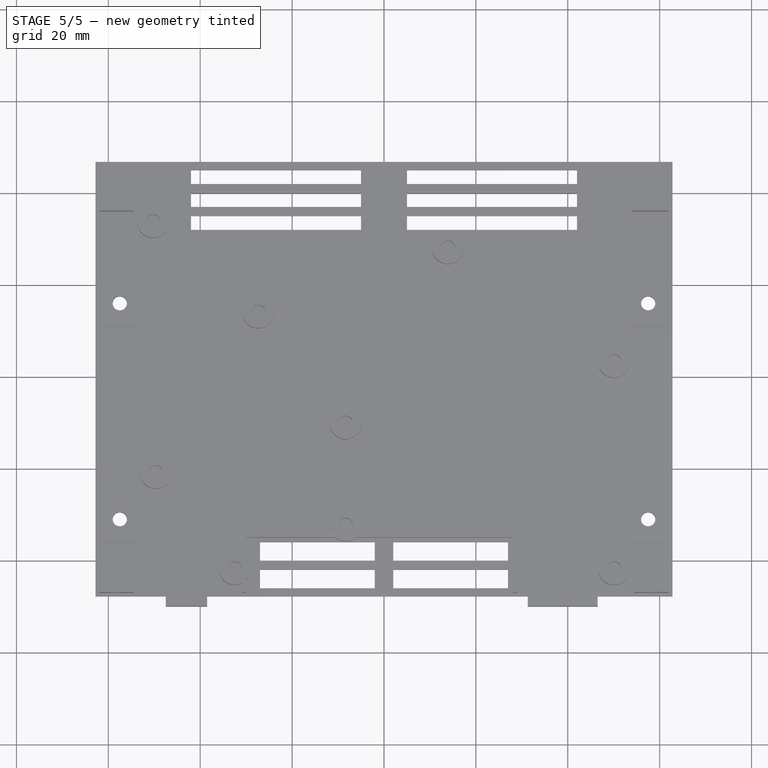
[diagram: stage 5 of 5 — top view after this stage's code; geometry added in this stage tinted green]
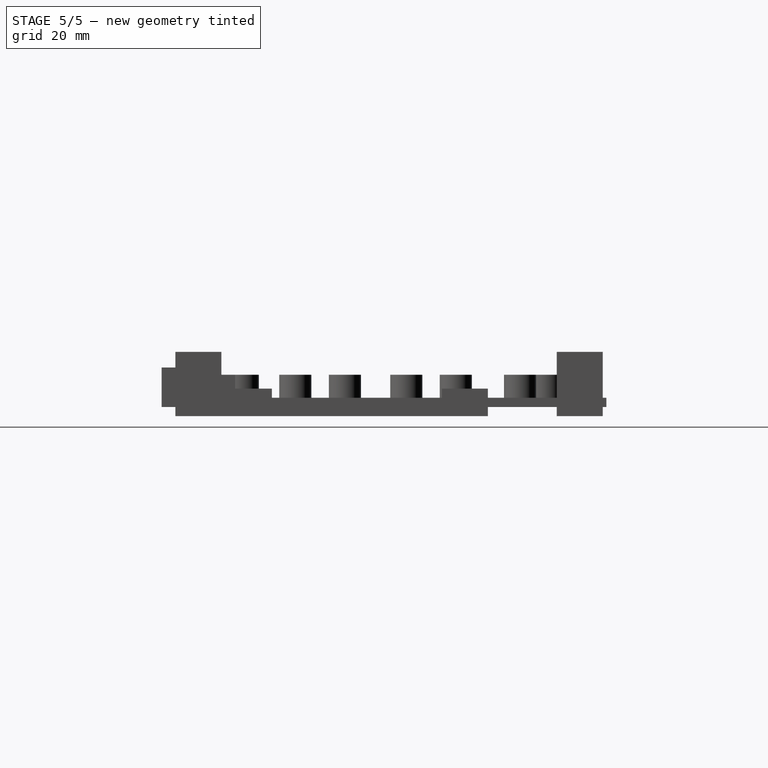
[diagram: stage 5 of 5 — right view after this stage's code; geometry added in this stage tinted green]
FEATURE [PartDesign::Hole] Hole005
  BaseFeature = -> Pad018
  Depth = 25
  DepthType = 1
  Diameter = 3.1
  DrillForDepth = false
  DrillPoint = 1
  DrillPointAngle = 118
  HoleCutCountersinkAngle = 90
  HoleCutCustomValues = false
  HoleCutDepth = 0
  HoleCutDiameter = 6.1
  HoleCutType = 0
  ModelActualThread = false
  Profile = -> Pad018 [Face202]
  Tapered = false
  TaperedAngle = 90
  ThreadAngle = 0
  ThreadClass = 0
  ThreadCutOffInner = 0
  ThreadCutOffOuter = 0
  ThreadDirection = 0
  ThreadFit = 0
  ThreadPitch = 0
  ThreadSize = 0
  ThreadType = 0
  Threaded = false
FEATURE [PartDesign::Hole] Hole006
  BaseFeature = -> Hole005
  Depth = 25
  DepthType = 1
  Diameter = 3.1
  DrillForDepth = false
  DrillPoint = 1
  DrillPointAngle = 118
  HoleCutCountersinkAngle = 90
  HoleCutCustomValues = false
  HoleCutDepth = 0
  HoleCutDiameter = 6.1
  HoleCutType = 0
  ModelActualThread = false
  Profile = -> Hole005 [Face193]
  Tapered = false
  TaperedAngle = 90
  ThreadAngle = 0
  ThreadClass = 0
  ThreadCutOffInner = 0
  ThreadCutOffOuter = 0
  ThreadDirection = 0
  ThreadFit = 0
  ThreadPitch = 0
  ThreadSize = 0
  ThreadType = 0
  Threaded = false
FEATURE [PartDesign::Hole] Hole007
  BaseFeature = -> Hole006
  Depth = 25
  DepthType = 1
  Diameter = 3.1
  DrillForDepth = false
  DrillPoint = 1
  DrillPointAngle = 118
  HoleCutCountersinkAngle = 90
  HoleCutCustomValues = false
  HoleCutDepth = 0
  HoleCutDiameter = 6.1
  HoleCutType = 0
  ModelActualThread = false
  Profile = -> Hole006 [Face197]
  Tapered = false
  TaperedAngle = 90
  ThreadAngle = 0
  ThreadClass = 0
  ThreadCutOffInner = 0
  ThreadCutOffOuter = 0
  ThreadDirection = 0
  ThreadFit = 0
  ThreadPitch = 0
  ThreadSize = 0
  ThreadType = 0
  Threaded = false
FEATURE [PartDesign::Hole] Hole008
  BaseFeature = -> Hole007
  Depth = 25
  DepthType = 1
  Diameter = 3.1
  DrillForDepth = false
  DrillPoint = 1
  DrillPointAngle = 118
  HoleCutCountersinkAngle = 90
  HoleCutCustomValues = false
  HoleCutDepth = 0
  HoleCutDiameter = 6.1
  HoleCutType = 0
  ModelActualThread = false
  Profile = -> Hole007 [Face177]
  Tapered = false
  TaperedAngle = 90
  ThreadAngle = 0
  ThreadClass = 0
  ThreadCutOffInner = 0
  ThreadCutOffOuter = 0
  ThreadDirection = 0
  ThreadFit = 0
  ThreadPitch = 0
  ThreadSize = 0
  ThreadType = 0
  Threaded = false
FEATURE [PartDesign::Body] Body  label="bottom_part"
  Group = -> [Sketch,Pad,Sketch002,Sketch003,Pad003,Sketch004,Pad004,Sketch010,Sketch011,Pad010,Sketch014,Hole002,Sketch017,Pad011,Sketch020,Sketch021,Sketch023,Sketch024,Hole,Hole003,Hole004,Pad012,Pad013,Pad014,Pad015,Pad016,Pad017,Pad018,Hole005,Hole006,Hole007,Hole008]
  Origin = -> Origin
  Tip = -> Hole008
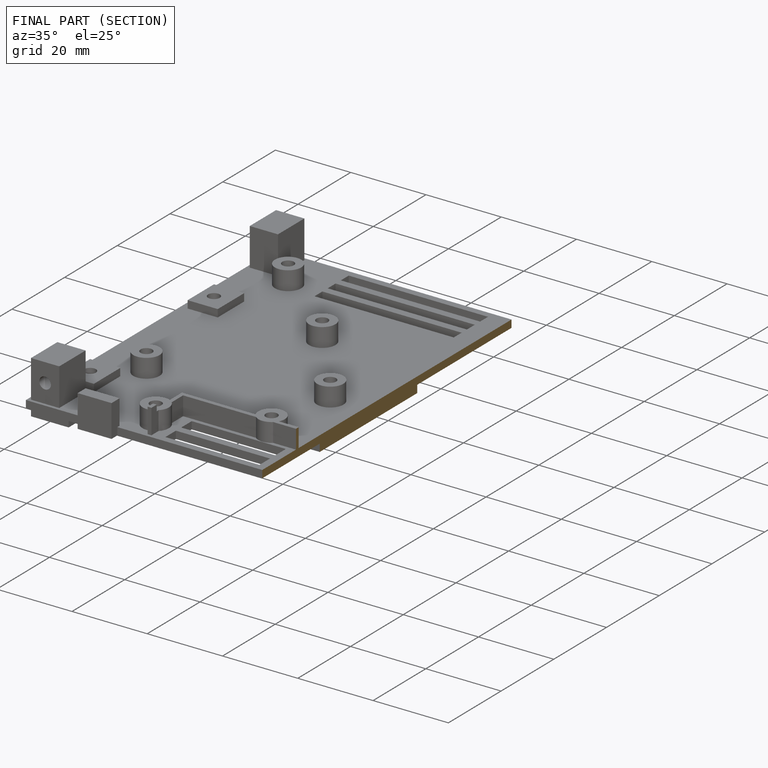
[diagram: finished part — half-section view (interior)]
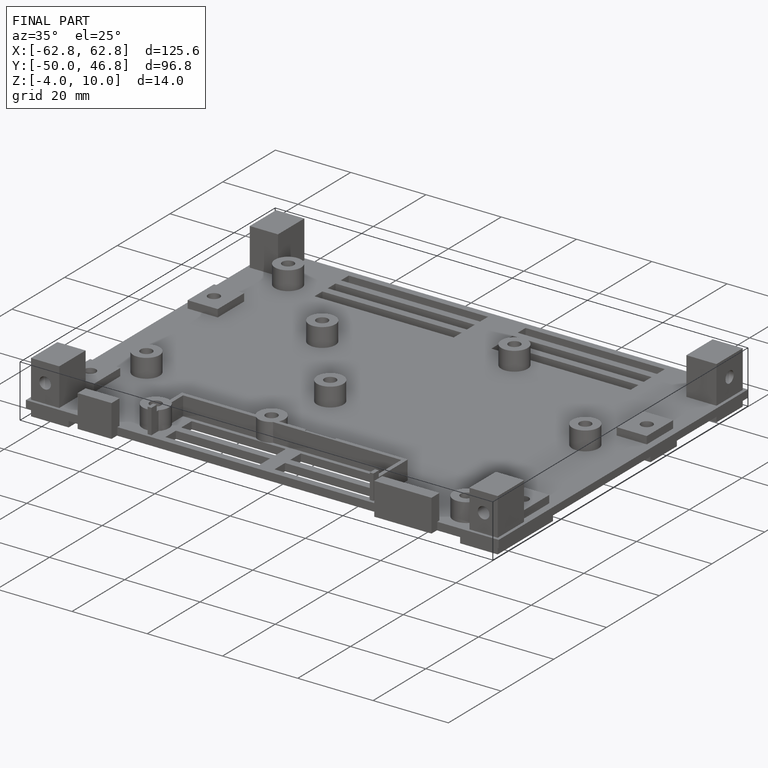
[diagram: finished part — iso view with bounding-box wireframe]
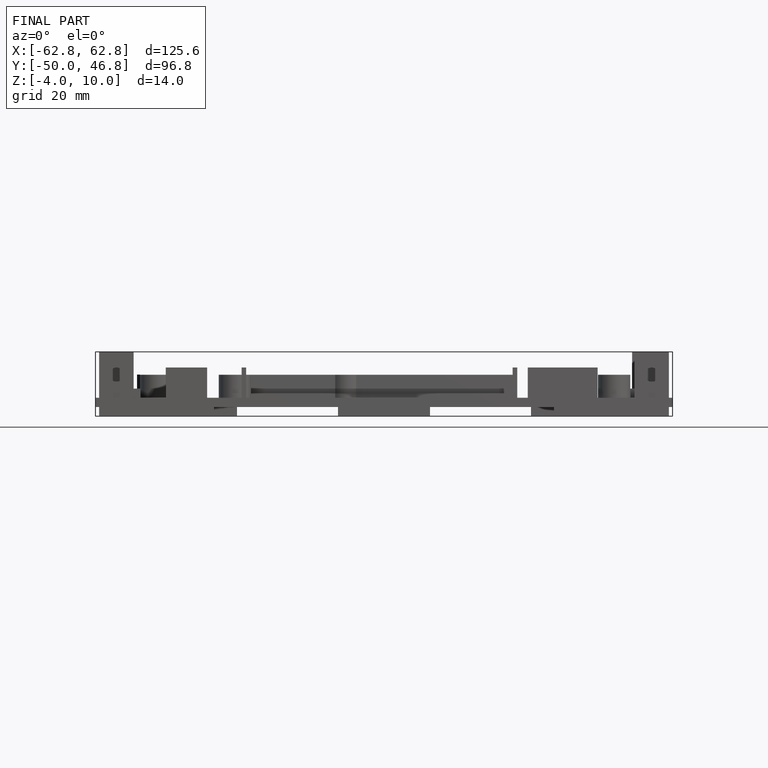
[diagram: finished part — front view with bounding-box wireframe]
